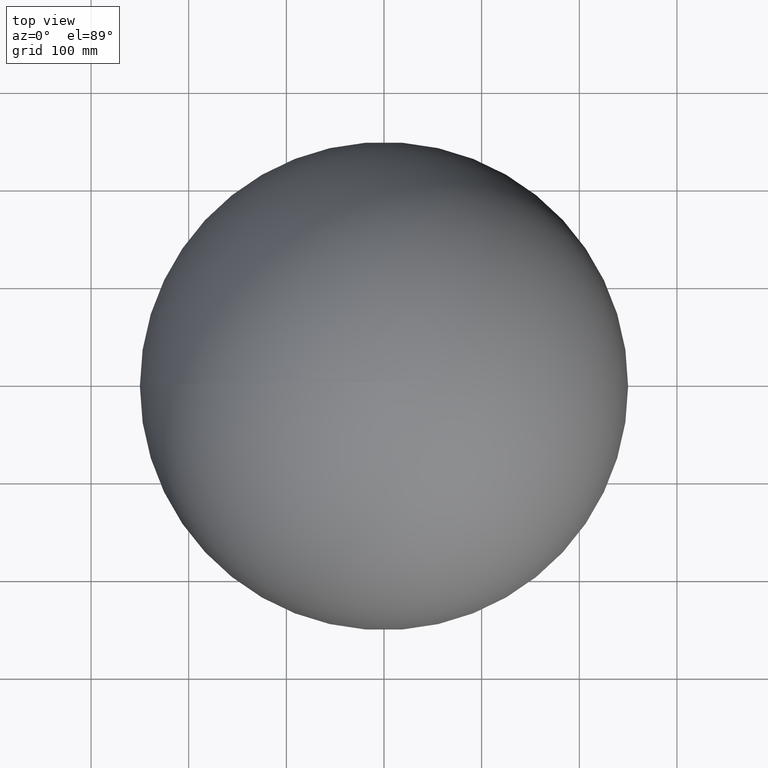
[diagram: clean part render]
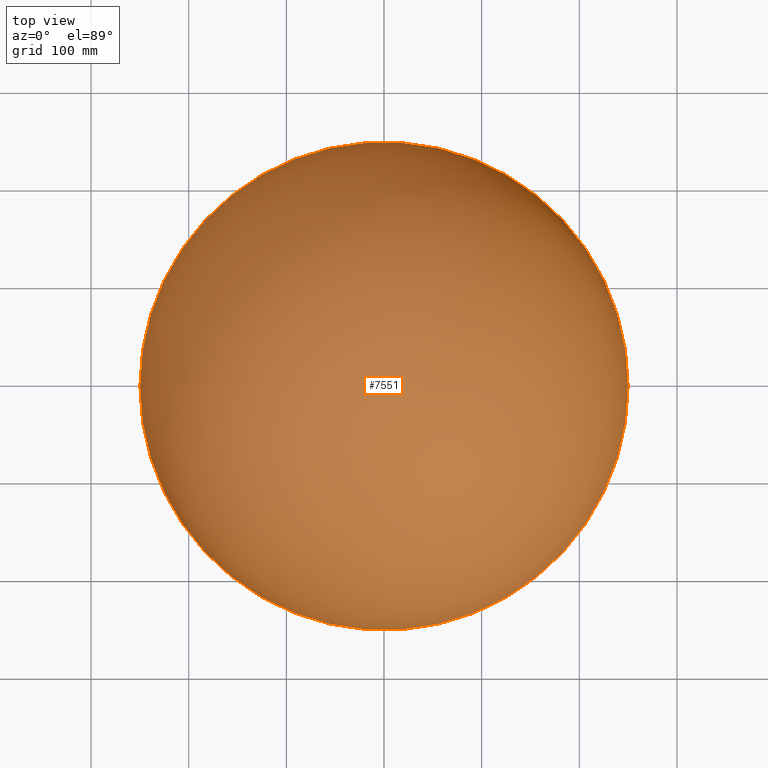
[diagram: same view with one face highlighted and labeled with its STEP entity id]
A machine part, top view. The second image highlights one B-rep face of the part: STEP entity #7551.
In plain terms, the highlighted spherical surface has radius 250 mm.
Its self-contained STEP definition (entity closure, byte-faithful):
#200 = CARTESIAN_POINT ( 'NONE',  ( 250.0000000000000000, 3.061616997868383121E-14, 1.745740669421566627E-12 ) ) ;
#766 = DIRECTION ( 'NONE',  ( -1.000000000000000000, 0.000000000000000000, -6.982962677686266711E-15 ) ) ;
#1380 = VERTEX_POINT ( 'NONE', #10979 ) ;
#1479 = CARTESIAN_POINT ( 'NONE',  ( 0.000000000000000000, 0.000000000000000000, 0.000000000000000000 ) ) ;
#3431 = DIRECTION ( 'NONE',  ( -1.000000000000000000, 0.000000000000000000, -6.982962677686266711E-15 ) ) ;
#4260 = CARTESIAN_POINT ( 'NONE',  ( 0.000000000000000000, 0.000000000000000000, 0.000000000000000000 ) ) ;
#4464 = CIRCLE ( 'NONE', #7798, 250.0000000000000000 ) ;
#4498 = FACE_OUTER_BOUND ( 'NONE', #9660, .T. ) ;
#4979 = DIRECTION ( 'NONE',  ( 6.982962677686266711E-15, 0.000000000000000000, -1.000000000000000000 ) ) ;
#6566 = VERTEX_POINT ( 'NONE', #200 ) ;
#6766 = CARTESIAN_POINT ( 'NONE',  ( 0.000000000000000000, 0.000000000000000000, 0.000000000000000000 ) ) ;
#7551 = ADVANCED_FACE ( 'NONE', ( #4498 ), #7712, .T. ) ;
#7652 = DIRECTION ( 'NONE',  ( 6.982962677686266711E-15, 0.000000000000000000, -1.000000000000000000 ) ) ;
#7712 = SPHERICAL_SURFACE ( 'NONE', #8085, 250.0000000000000000 ) ;
#7798 = AXIS2_PLACEMENT_3D ( 'NONE', #6766, #7652, #766 ) ;
#8085 = AXIS2_PLACEMENT_3D ( 'NONE', #1479, #10191, #3431 ) ;
#8174 = EDGE_CURVE ( 'NONE', #6566, #1380, #10600, .T. ) ;
#8488 = DIRECTION ( 'NONE',  ( -1.000000000000000000, 0.000000000000000000, -6.982962677686266711E-15 ) ) ;
#8825 = ORIENTED_EDGE ( 'NONE', *, *, #8174, .F. ) ;
#8866 = AXIS2_PLACEMENT_3D ( 'NONE', #4260, #4979, #8488 ) ;
#9660 = EDGE_LOOP ( 'NONE', ( #11043, #8825 ) ) ;
#10191 = DIRECTION ( 'NONE',  ( -6.982962677686266711E-15, 0.000000000000000000, 1.000000000000000000 ) ) ;
#10600 = CIRCLE ( 'NONE', #8866, 250.0000000000000000 ) ;
#10916 = EDGE_CURVE ( 'NONE', #1380, #6566, #4464, .T. ) ;
#10979 = CARTESIAN_POINT ( 'NONE',  ( -250.0000000000000000, 0.000000000000000000, -1.745740669421566627E-12 ) ) ;
#11043 = ORIENTED_EDGE ( 'NONE', *, *, #10916, .F. ) ;